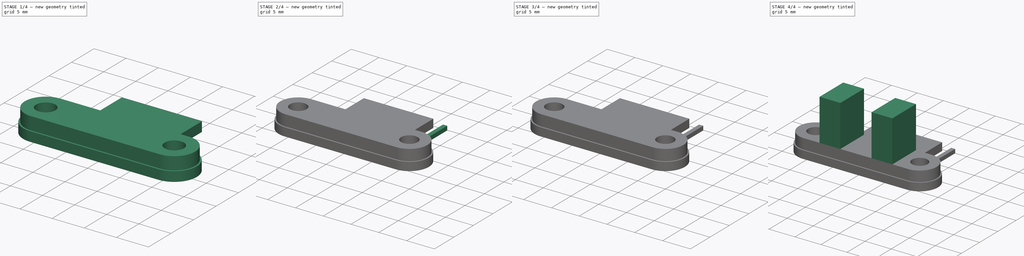
[diagram: build sequence overview — one tinted view per stage of 4, left to right]
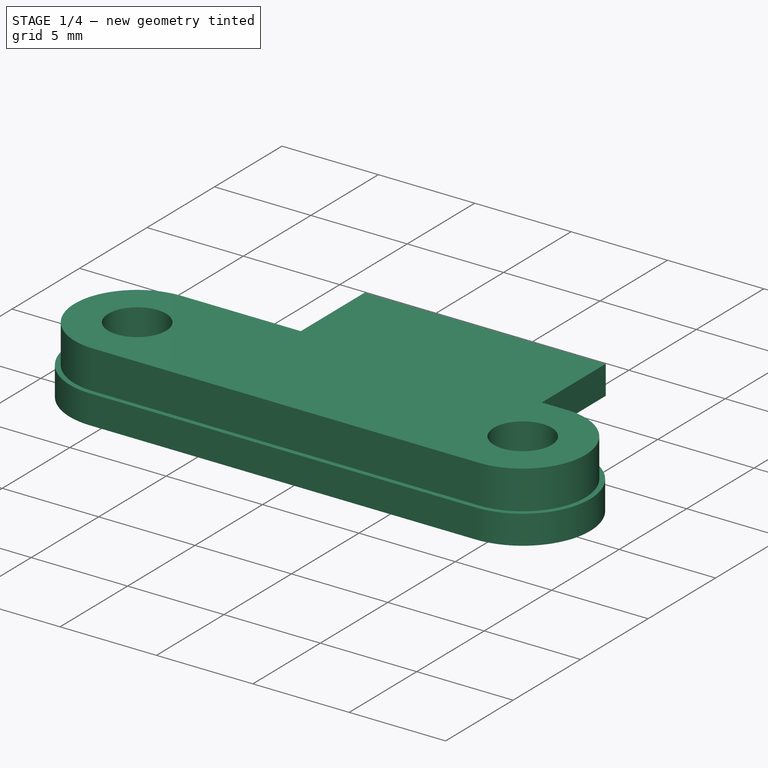
[diagram: stage 1 of 4 — iso view after this stage's code; geometry added in this stage tinted green]
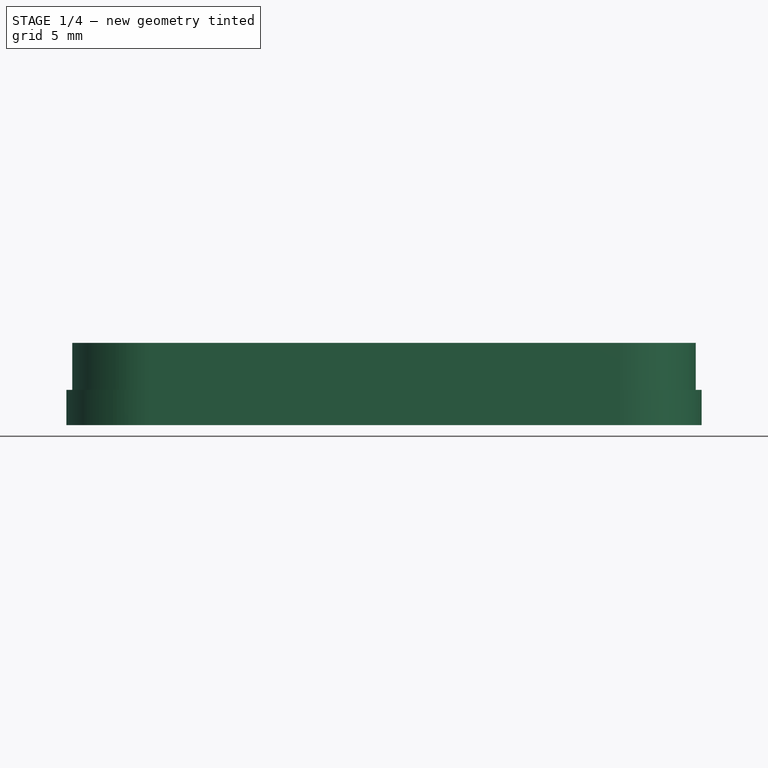
[diagram: stage 1 of 4 — front view after this stage's code; geometry added in this stage tinted green]
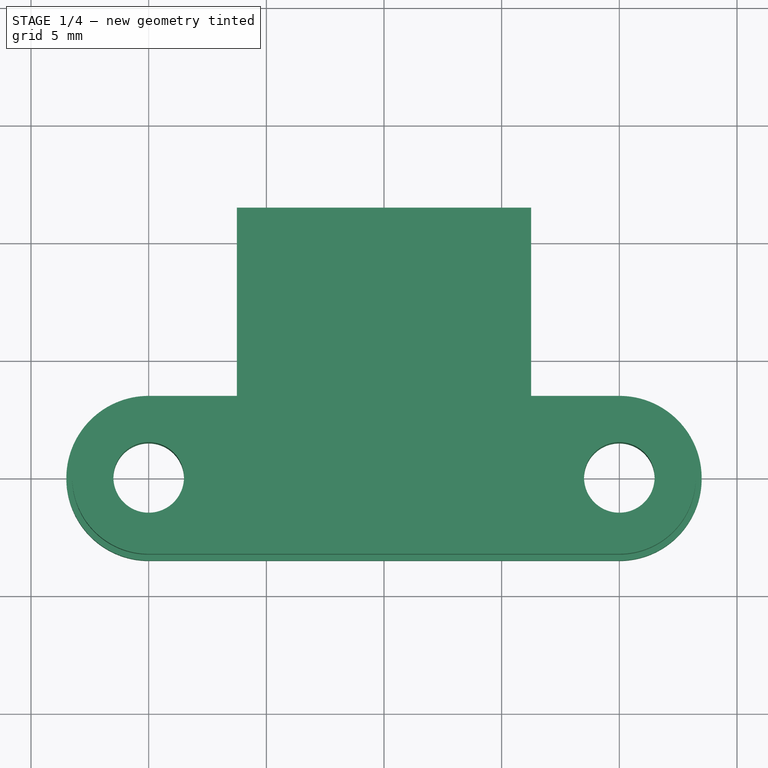
[diagram: stage 1 of 4 — top view after this stage's code; geometry added in this stage tinted green]
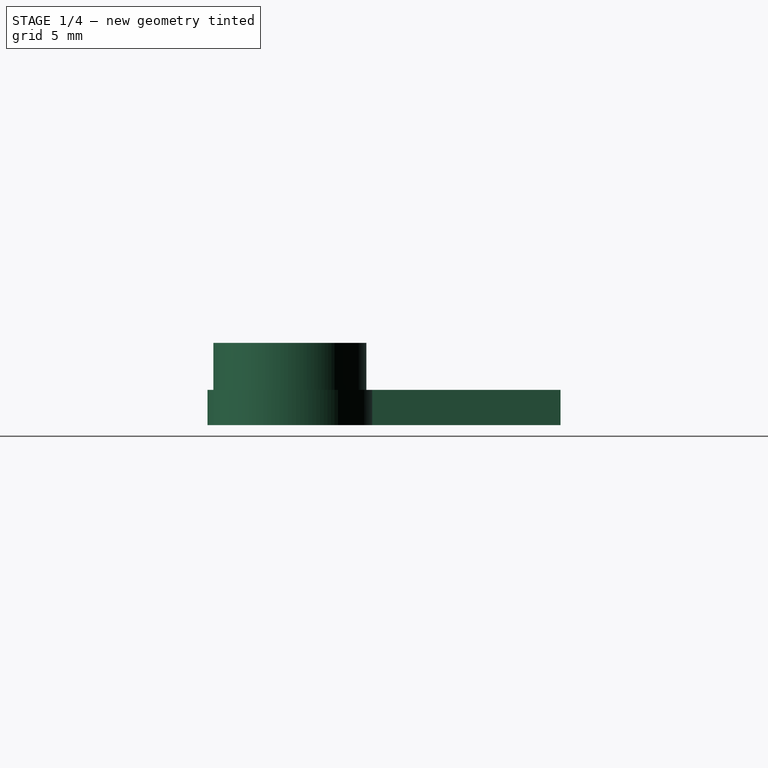
[diagram: stage 1 of 4 — right view after this stage's code; geometry added in this stage tinted green]
FCSTD DOCUMENT  (FreeCAD 0.20RUnknown)
Label: MovementSensor
License: All rights reserved
LicenseURL: http://en.wikipedia.org/wiki/All_rights_reserved
objects: Part::Box×4, Part::MultiFuse×4, Sketcher::SketchObject×3, Part::Extrusion×3
note: 14 computed .brp shape members not serialized (recipe doc carries the construction recipe); baked Part::Feature solids carry a one-line shape summary decoded from their .brp

FEATURE [Sketcher::SketchObject] Sketch005
  FullyConstrained = true
  sketch-geometry (10):
    g0: LineSegment StartX=-6.25 StartY=11.5 StartZ=0 EndX=6.25 EndY=11.5 EndZ=0
    g1: LineSegment StartX=6.25 StartY=11.5 StartZ=0 EndX=6.25 EndY=3.5 EndZ=0
    g2: LineSegment StartX=6.25 StartY=3.5 StartZ=0 EndX=10 EndY=3.5 EndZ=0
    g3: ArcOfCircle CenterX=10 CenterY=1e-16 CenterZ=0 NormalX=0 NormalY=0 NormalZ=1 AngleXU=0 Radius=3.5 StartAngle=4.71239 EndAngle=7.85398
    g4: LineSegment StartX=10 StartY=-3.5 StartZ=0 EndX=-10 EndY=-3.5 EndZ=0
    g5: ArcOfCircle CenterX=-10 CenterY=0 CenterZ=0 NormalX=0 NormalY=0 NormalZ=1 AngleXU=0 Radius=3.5 StartAngle=1.5708 EndAngle=4.71239
    g6: LineSegment StartX=-10 StartY=3.5 StartZ=0 EndX=-6.25 EndY=3.5 EndZ=0
    g7: LineSegment StartX=-6.25 StartY=3.5 StartZ=0 EndX=-6.25 EndY=11.5 EndZ=0
    g8: Circle CenterX=-10 CenterY=0 CenterZ=0 NormalX=0 NormalY=0 NormalZ=1 AngleXU=0 Radius=1.5
    g9: Circle CenterX=10 CenterY=1e-16 CenterZ=0 NormalX=0 NormalY=0 NormalZ=1 AngleXU=0 Radius=1.5
  constraints (24):
    c: Coincident(g0,g1)
    c: Vertical(g1)
    c: Coincident(g1,g2)
    c: Horizontal(g2)
    c: Tangent(g2,g3) = 1.5708
    c: Tangent(g3,g4) = 1.5708
    c: Tangent(g4,g5) = 1.5708
    c: Tangent(g5,g6) = 1.5708
    c: Coincident(g6,g7)
    c: Coincident(g7,g0)
    c: Horizontal(g6)
    c: Horizontal(g4)
    c: Equal(g6,g2)
    c: Symmetric(g0,g0,g-2)
    c: Symmetric(g5,g3,g-2)
    c: DistanceY(g7,g7) = 8
    c: DistanceX(g0,g0) = 12.5
    c: Diameter(g3) = 7
    c: DistanceX(g4,g4) = 20
    c: PointOnObject(g5,g-1)
    c: Coincident(g8,g5)
    c: Coincident(g9,g3)
    c: Equal(g8,g9)
    c: Diameter(g8) = 3
FEATURE [Part::Extrusion] Extrude002
  Base = -> Sketch005
  Dir = (0,0,1)
  DirMode = 2
  FaceMakerClass = Part::FaceMakerBullseye
  LengthFwd = 1.5
  LengthRev = 0
  Solid = true
  Symmetric = false
FEATURE [Sketcher::SketchObject] Sketch006
  FullyConstrained = true
  sketch-geometry (6):
    g0: ArcOfCircle CenterX=-10 CenterY=0 CenterZ=0 NormalX=0 NormalY=0 NormalZ=1 AngleXU=0 Radius=3.25 StartAngle=1.5708 EndAngle=4.71239
    g1: ArcOfCircle CenterX=10 CenterY=0 CenterZ=0 NormalX=0 NormalY=0 NormalZ=1 AngleXU=0 Radius=3.25 StartAngle=4.71239 EndAngle=7.85398
    g2: LineSegment StartX=-10 StartY=-3.25 StartZ=0 EndX=10 EndY=-3.25 EndZ=0
    g3: LineSegment StartX=10 StartY=3.25 StartZ=0 EndX=-10 EndY=3.25 EndZ=0
    g4: Circle CenterX=-10 CenterY=0 CenterZ=0 NormalX=0 NormalY=0 NormalZ=1 AngleXU=0 Radius=1.5
    g5: Circle CenterX=10 CenterY=0 CenterZ=0 NormalX=0 NormalY=0 NormalZ=1 AngleXU=0 Radius=1.5
  constraints (13):
    c: Tangent(g0,g2) = -1.5708
    c: Tangent(g2,g1) = -1.5708
    c: Tangent(g1,g3) = -1.5708
    c: Tangent(g3,g0) = -1.5708
    c: Equal(g0,g1)
    c: PointOnObject(g0,g-1)
    c: Symmetric(g0,g1,g-1)
    c: Diameter(g1) = 6.5
    c: DistanceX(g2,g2) = 20
    c: Coincident(g4,g0)
    c: Coincident(g5,g1)
    c: Equal(g5,g4)
    c: Diameter(g4) = 3
FEATURE [Part::Extrusion] Extrude003
  Base = -> Sketch006
  Dir = (0,0,1)
  DirMode = 2
  FaceMakerClass = Part::FaceMakerBullseye
  LengthFwd = 2
  LengthRev = 0
  Placement = pos=(0,0,1.5) rot=(0,0,1;0rad)
  Solid = true
  Symmetric = false
  expr: .Placement.Base.z = Extrude002.LengthFwd
FEATURE [Part::MultiFuse] Fusion003
  Refine = true
  Shapes = -> [Extrude002,Extrude003]
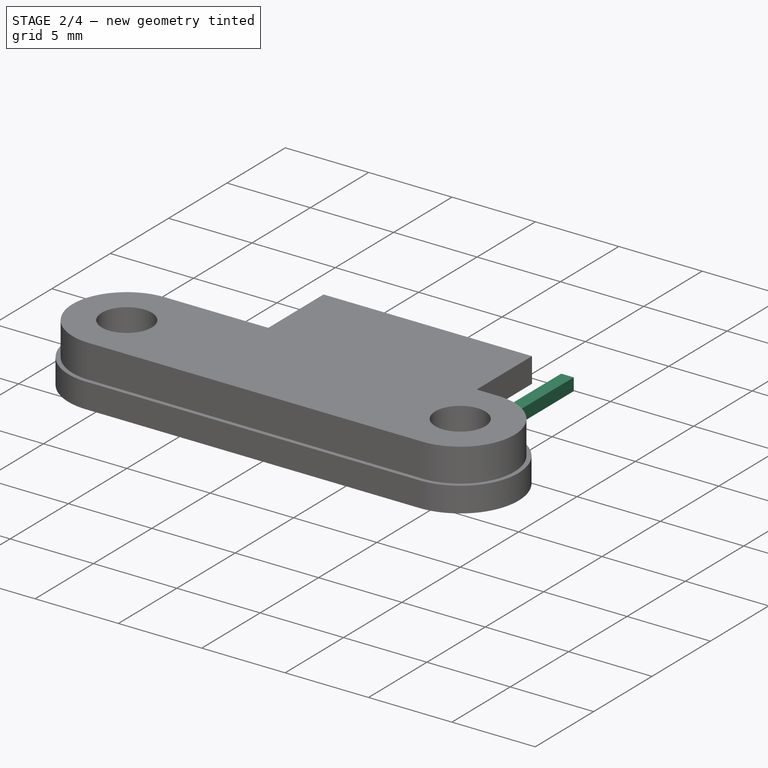
[diagram: stage 2 of 4 — iso view after this stage's code; geometry added in this stage tinted green]
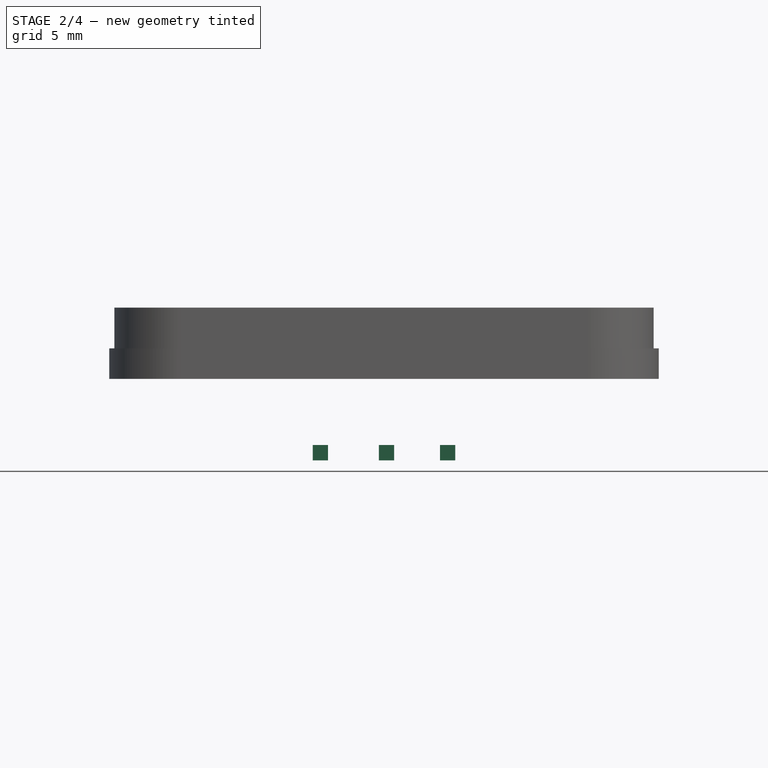
[diagram: stage 2 of 4 — front view after this stage's code; geometry added in this stage tinted green]
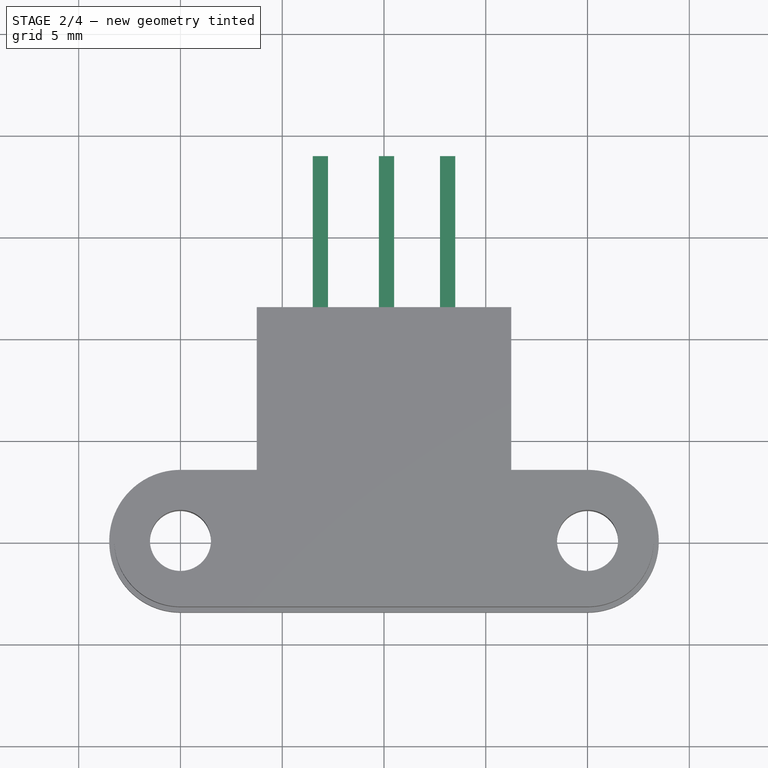
[diagram: stage 2 of 4 — top view after this stage's code; geometry added in this stage tinted green]
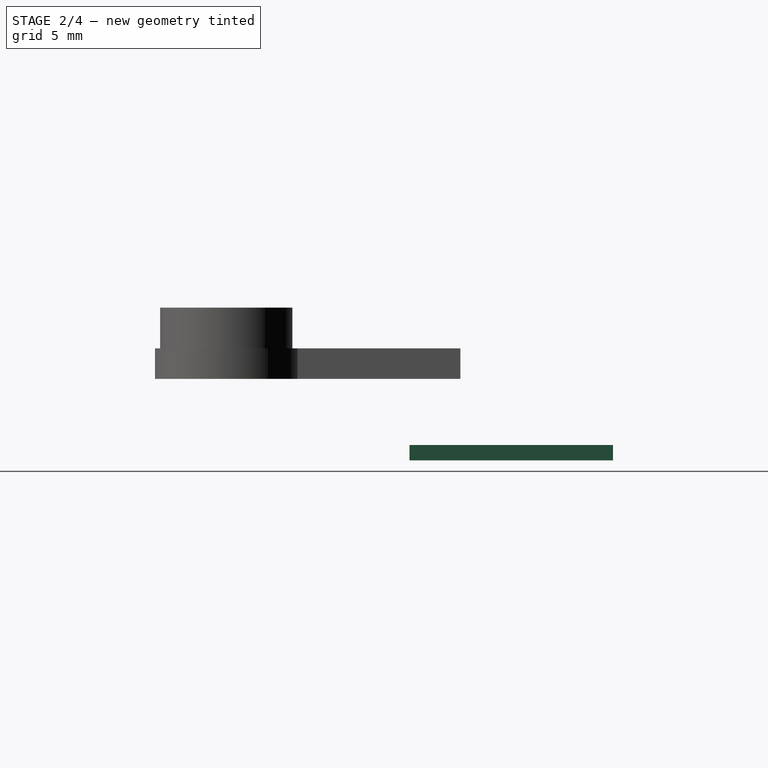
[diagram: stage 2 of 4 — right view after this stage's code; geometry added in this stage tinted green]
FEATURE [Part::Box] Box005  label="Cube001"
  AttacherType = Attacher::AttachEngine3D
  Height = 0.75
  Length = 0.75
  Placement = pos=(2.75,9,-4) rot=(0,0,1;0rad)
  Width = 10
FEATURE [Part::Box] Box006  label="Cube002"
  AttacherType = Attacher::AttachEngine3D
  Height = 0.75
  Length = 0.75
  Placement = pos=(-0.25,9,-4) rot=(0,0,1;0rad)
  Width = 10
FEATURE [Part::Box] Box007  label="Cube003"
  AttacherType = Attacher::AttachEngine3D
  Height = 0.75
  Length = 0.75
  Placement = pos=(-3.5,9,-4) rot=(0,0,1;0rad)
  Width = 10
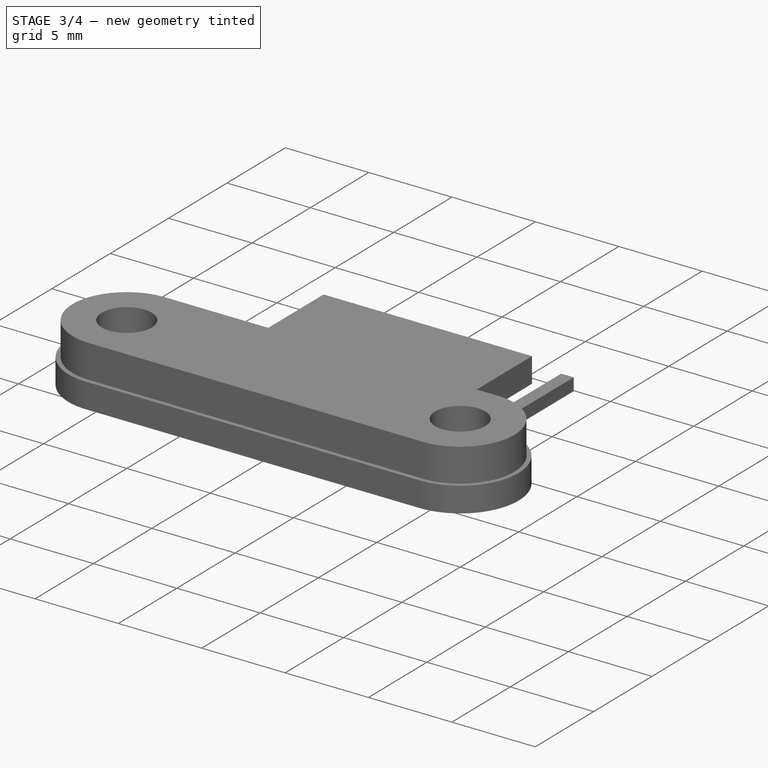
[diagram: stage 3 of 4 — iso view after this stage's code; geometry added in this stage tinted green]
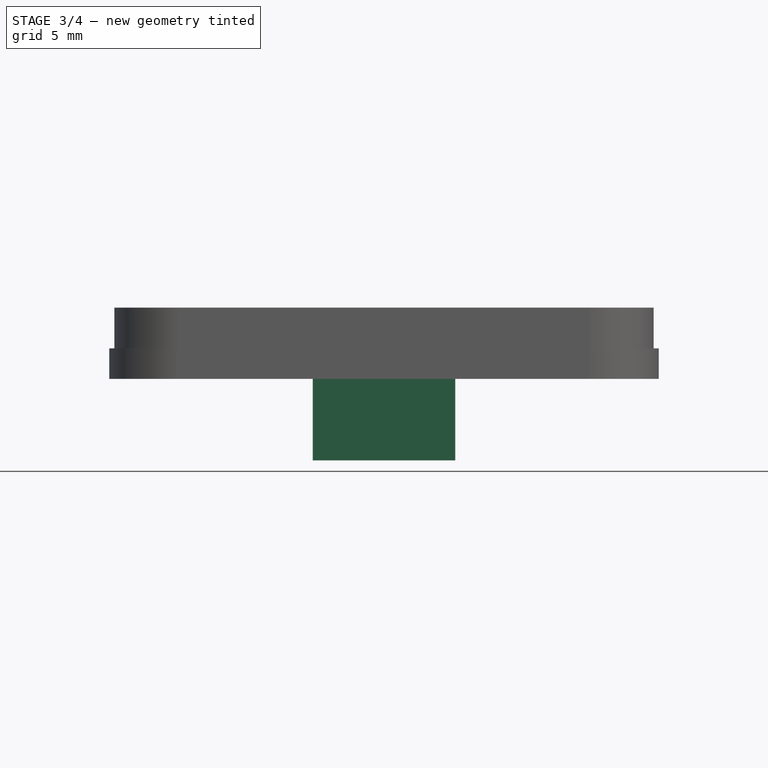
[diagram: stage 3 of 4 — front view after this stage's code; geometry added in this stage tinted green]
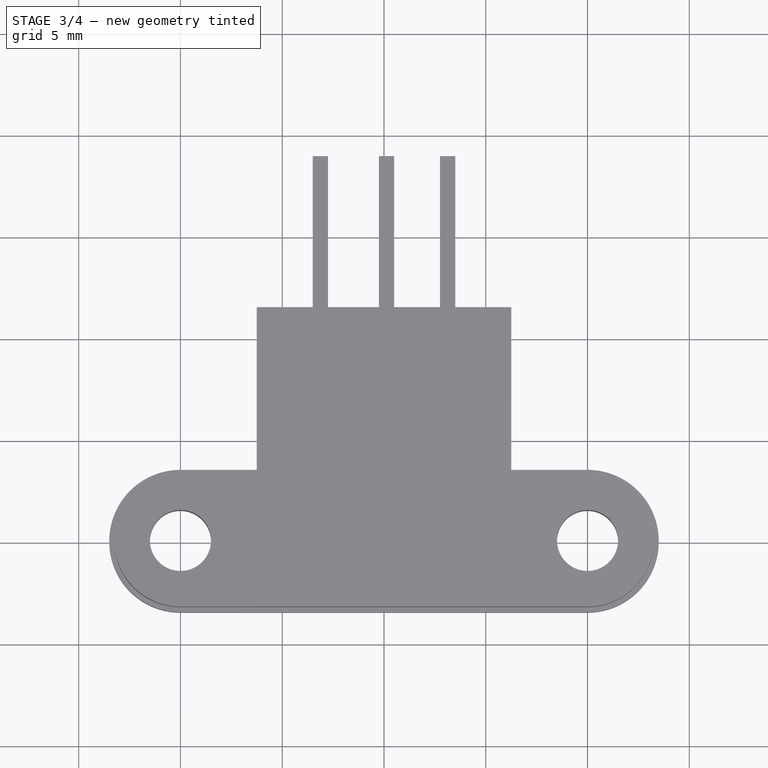
[diagram: stage 3 of 4 — top view after this stage's code; geometry added in this stage tinted green]
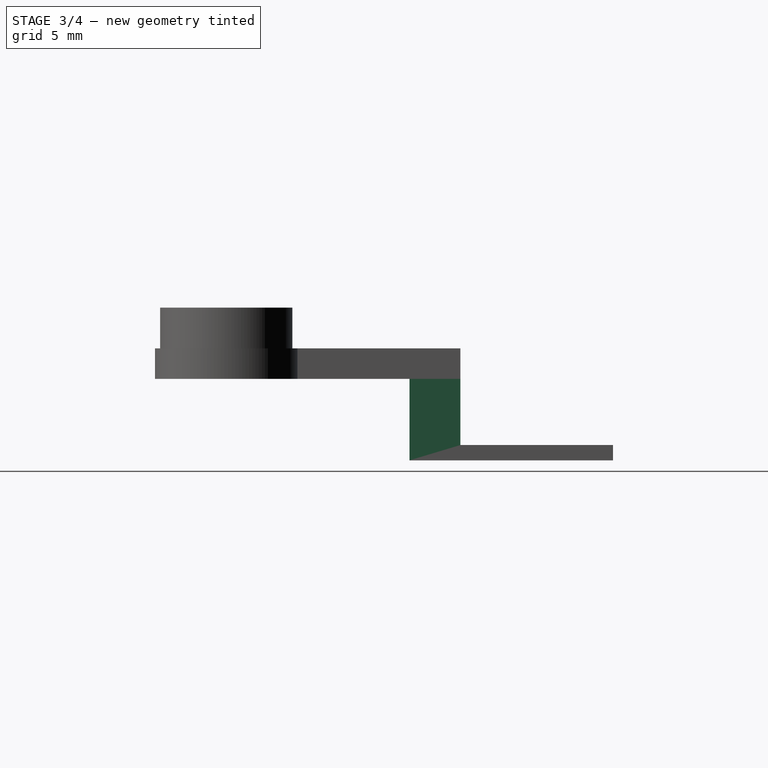
[diagram: stage 3 of 4 — right view after this stage's code; geometry added in this stage tinted green]
FEATURE [Part::Box] Box004  label="Cube"
  AttacherType = Attacher::AttachEngine3D
  Height = 4
  Length = 7
  Placement = pos=(-3.5,9,-4) rot=(0,0,1;0rad)
  Width = 2.5
  expr: .Placement.Base.x = -Length / 2
FEATURE [Part::MultiFuse] Fusion005
  Refine = true
  Shapes = -> [Box004,Box005,Box006,Box007]
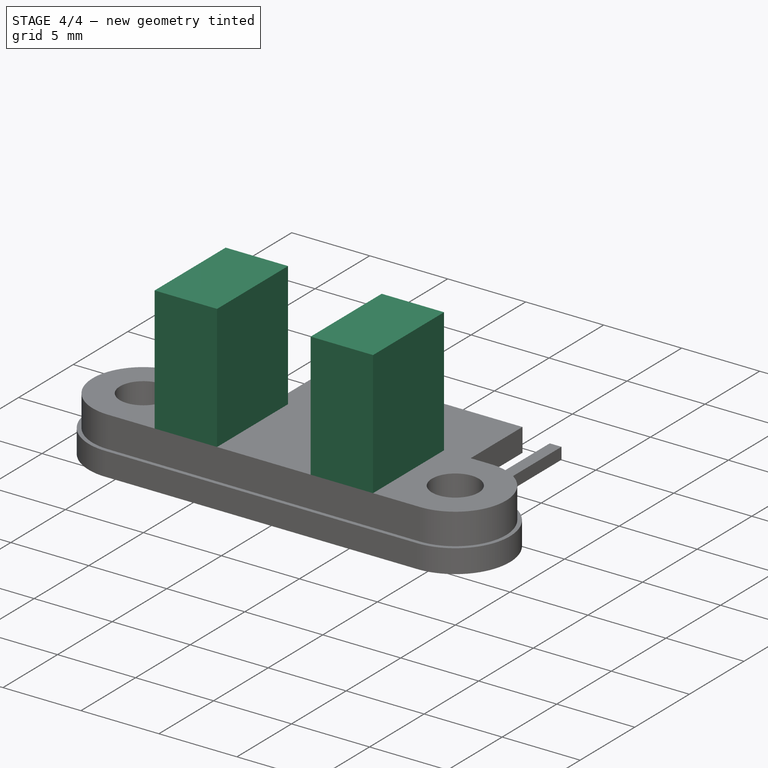
[diagram: stage 4 of 4 — iso view after this stage's code; geometry added in this stage tinted green]
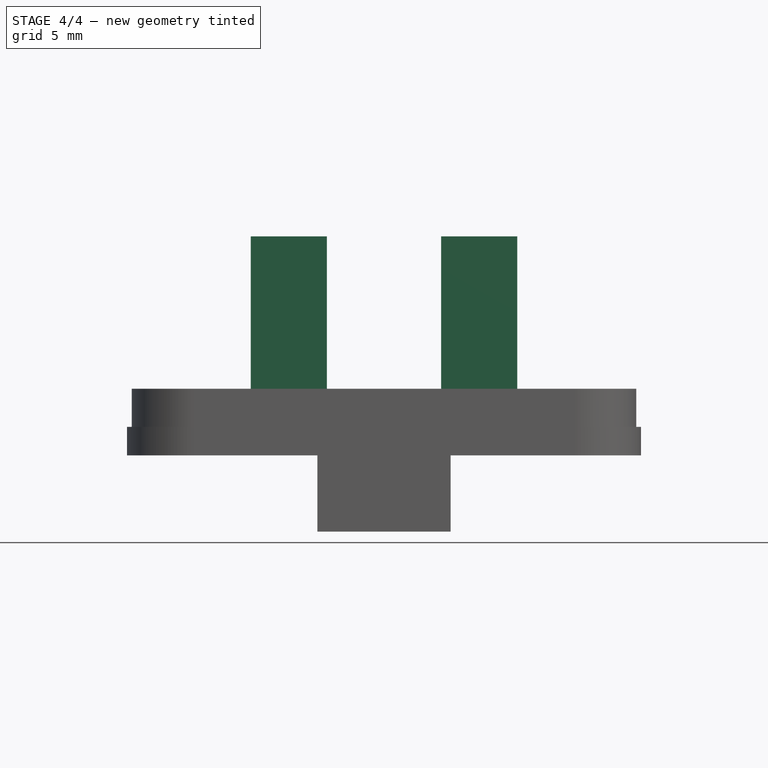
[diagram: stage 4 of 4 — front view after this stage's code; geometry added in this stage tinted green]
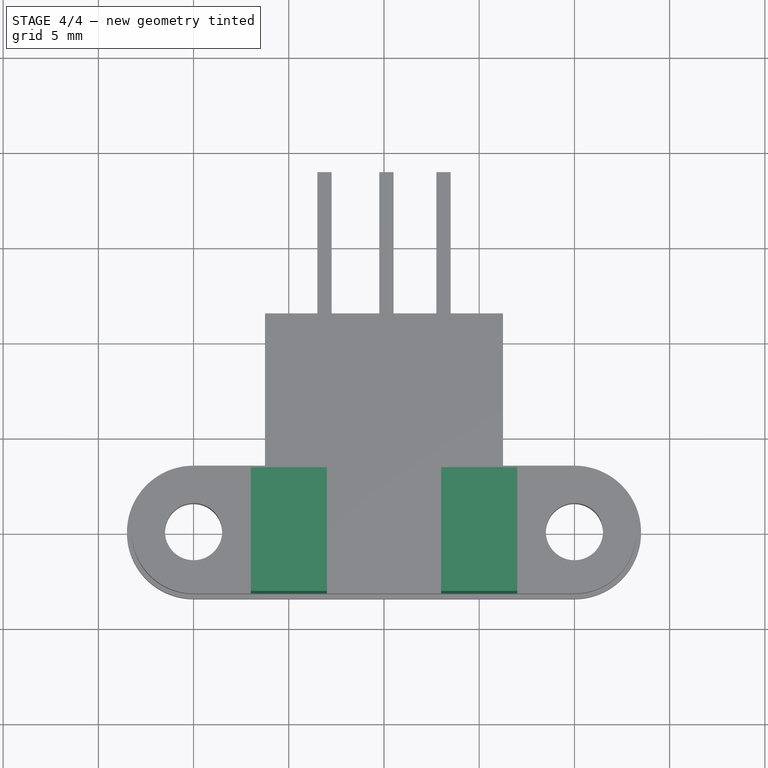
[diagram: stage 4 of 4 — top view after this stage's code; geometry added in this stage tinted green]
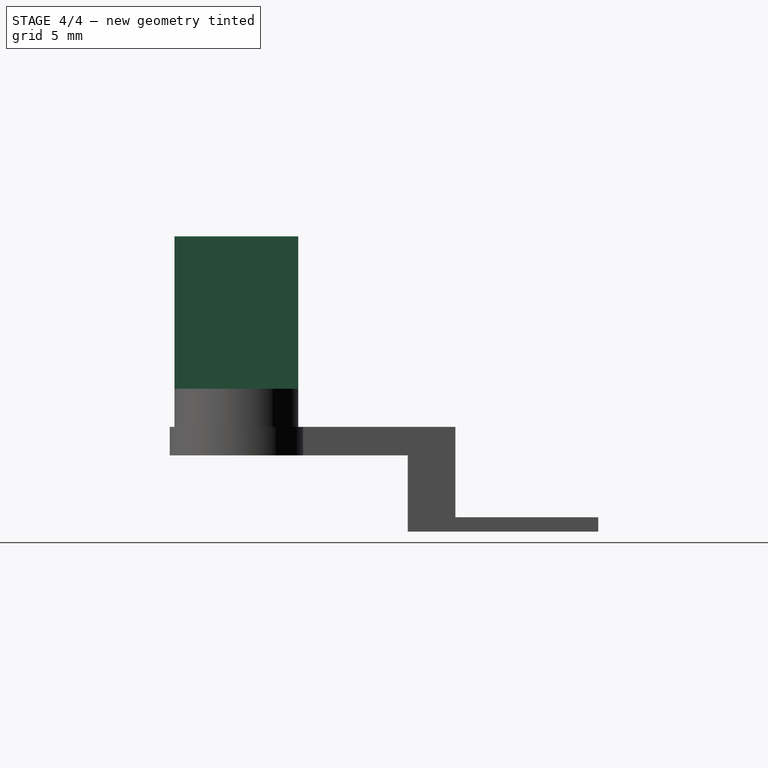
[diagram: stage 4 of 4 — right view after this stage's code; geometry added in this stage tinted green]
FEATURE [Sketcher::SketchObject] Sketch007
  ExternalGeometry = -> [Fusion003]
  FullyConstrained = true
  MapMode = 5
  Placement = pos=(0,0,3.5) rot=(0,0,1;0rad)
  Support = -> [Fusion003]
  sketch-geometry (8):
    g0: LineSegment StartX=3 StartY=3.25 StartZ=0 EndX=7 EndY=3.25 EndZ=0
    g1: LineSegment StartX=7 StartY=3.25 StartZ=0 EndX=7 EndY=-3.25 EndZ=0
    g2: LineSegment StartX=7 StartY=-3.25 StartZ=0 EndX=3 EndY=-3.25 EndZ=0
    g3: LineSegment StartX=3 StartY=-3.25 StartZ=0 EndX=3 EndY=3.25 EndZ=0
    g4: LineSegment StartX=-7 StartY=3.25 StartZ=0 EndX=-3 EndY=3.25 EndZ=0
    g5: LineSegment StartX=-3 StartY=3.25 StartZ=0 EndX=-3 EndY=-3.25 EndZ=0
    g6: LineSegment StartX=-3 StartY=-3.25 StartZ=0 EndX=-7 EndY=-3.25 EndZ=0
    g7: LineSegment StartX=-7 StartY=-3.25 StartZ=0 EndX=-7 EndY=3.25 EndZ=0
  constraints (22):
    c: Coincident(g0,g1)
    c: Coincident(g1,g2)
    c: Coincident(g2,g3)
    c: Coincident(g3,g0)
    c: Horizontal(g0)
    c: Horizontal(g2)
    c: Vertical(g1)
    c: Vertical(g3)
    c: PointOnObject(g0,g-3)
    c: PointOnObject(g1,g-4)
    c: Coincident(g4,g5)
    c: Coincident(g5,g6)
    c: Coincident(g6,g7)
    c: Coincident(g7,g4)
    c: Horizontal(g4)
    c: Vertical(g5)
    c: Vertical(g7)
    c: PointOnObject(g4,g-3)
    c: Symmetric(g5,g2,g-2)
    c: Symmetric(g6,g1,g-2)
    c: DistanceX(g6,g6) = 4
    c: DistanceX(g4,g0) = 6
FEATURE [Part::Extrusion] Extrude004
  Base = -> Sketch007
  Dir = (0,0,1)
  DirMode = 2
  FaceMakerClass = Part::FaceMakerBullseye
  LengthFwd = 8
  LengthRev = 0
  Solid = true
  Symmetric = false
FEATURE [Part::MultiFuse] Fusion004
  Refine = true
  Shapes = -> [Fusion003,Extrude004]
FEATURE [Part::MultiFuse] Fusion006
  Refine = true
  Shapes = -> [Fusion004,Fusion005,Fusion003,Extrude004]
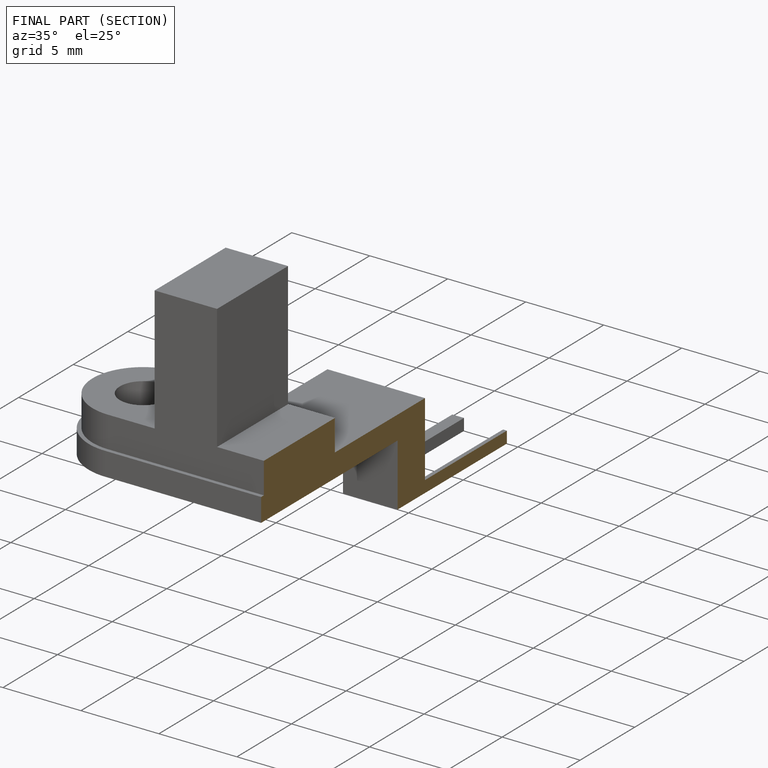
[diagram: finished part — half-section view (interior)]
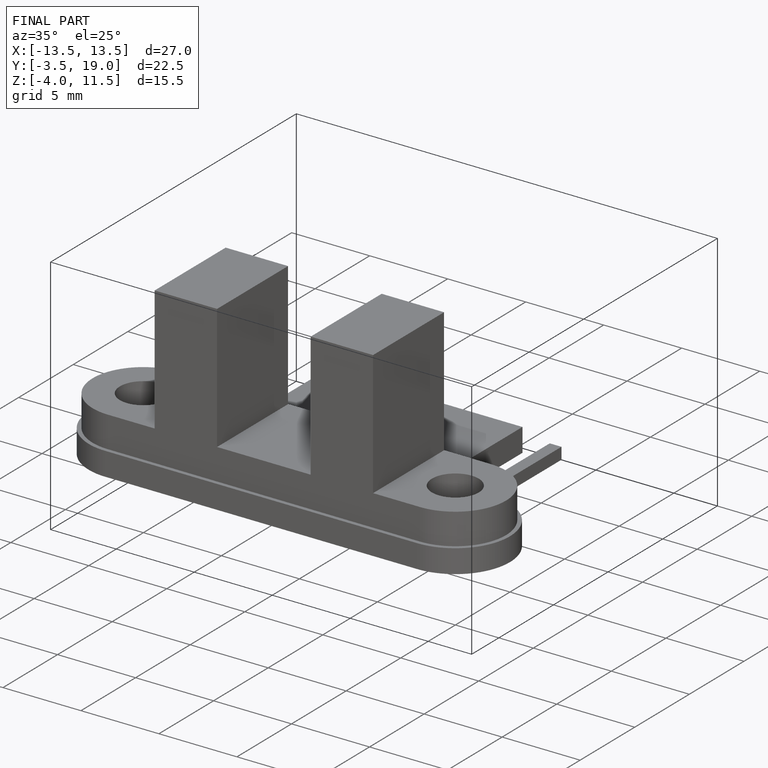
[diagram: finished part — iso view with bounding-box wireframe]
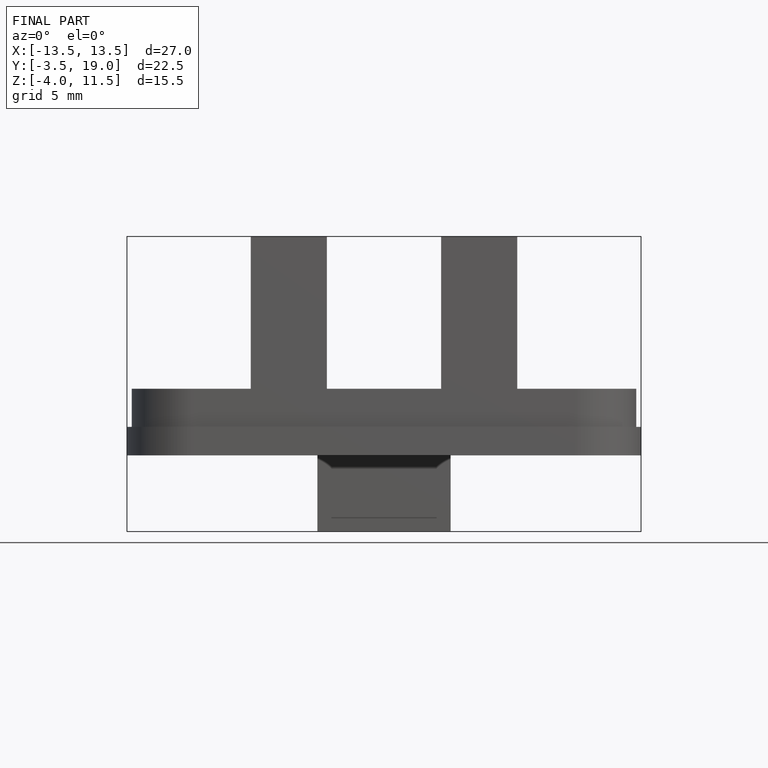
[diagram: finished part — front view with bounding-box wireframe]
